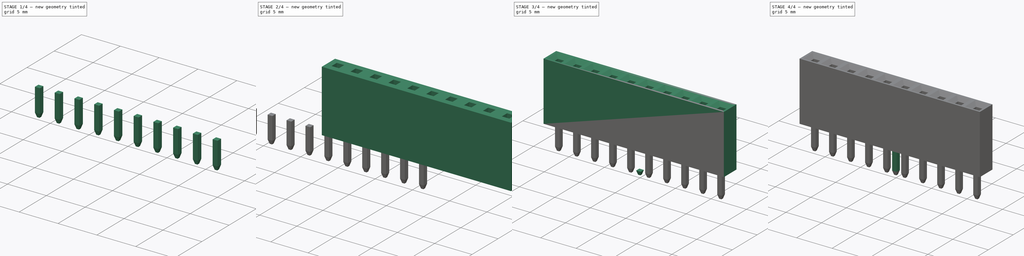
[diagram: build sequence overview — one tinted view per stage of 4, left to right]
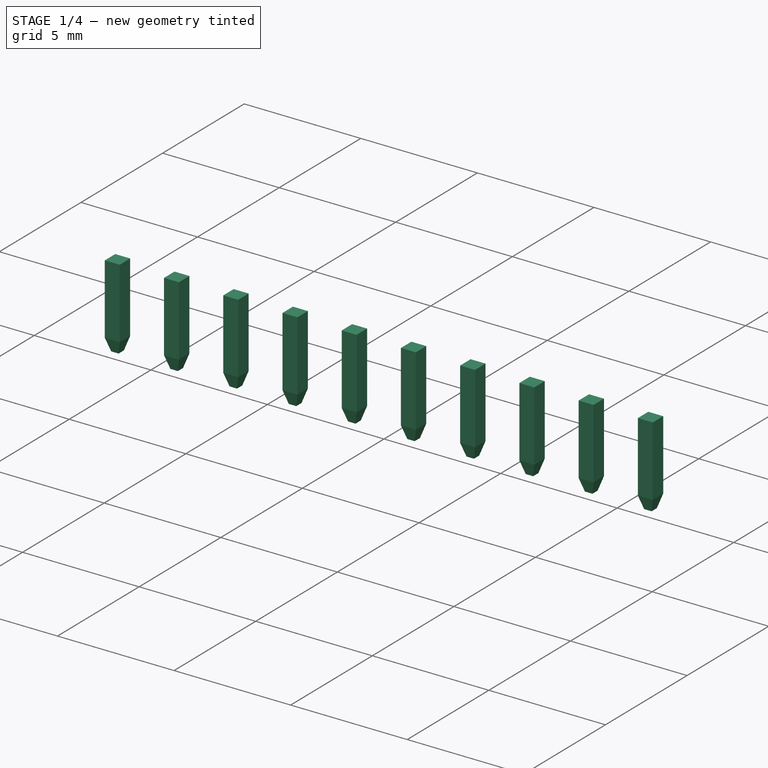
[diagram: stage 1 of 4 — iso view after this stage's code; geometry added in this stage tinted green]
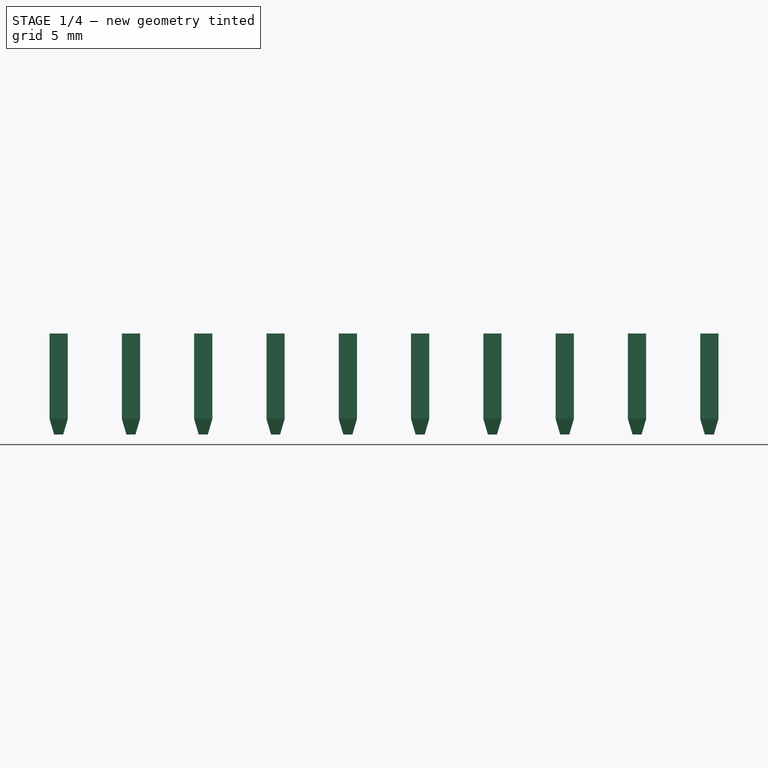
[diagram: stage 1 of 4 — front view after this stage's code; geometry added in this stage tinted green]
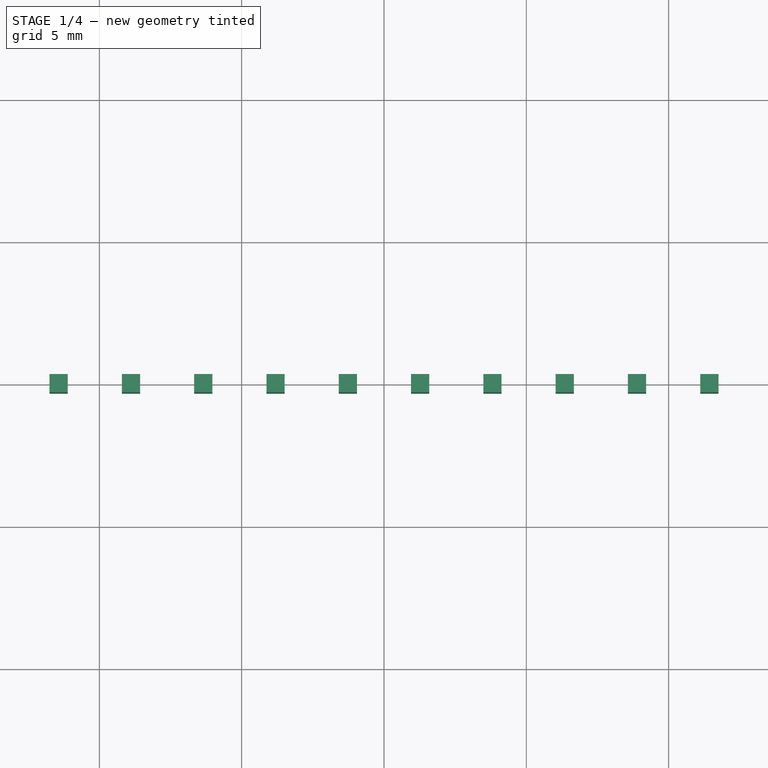
[diagram: stage 1 of 4 — top view after this stage's code; geometry added in this stage tinted green]
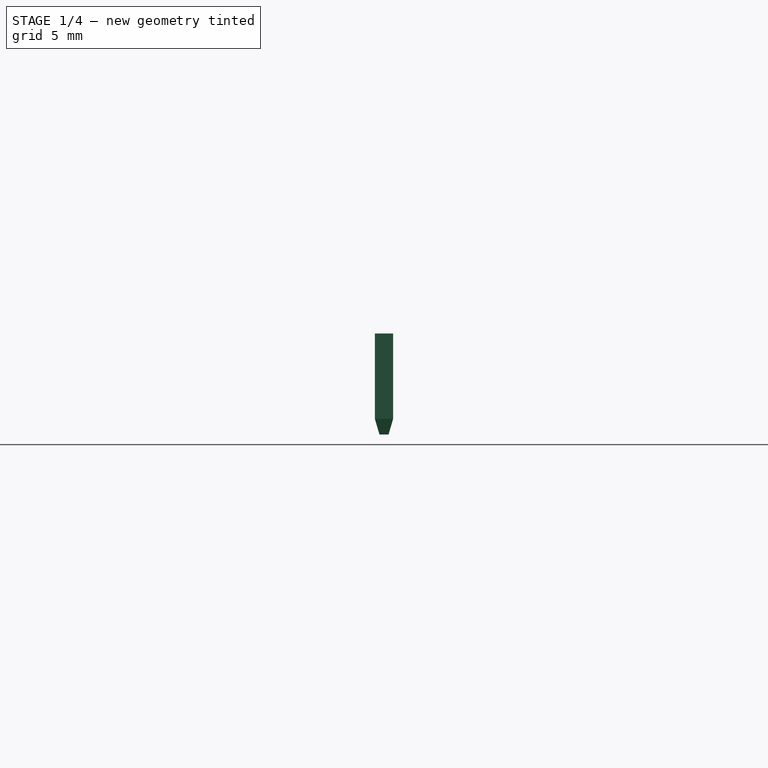
[diagram: stage 1 of 4 — right view after this stage's code; geometry added in this stage tinted green]
FCSTD DOCUMENT  (FreeCAD 0.16R6703 (Git))
Label: 1x10-female-pin-header
License: CC-BY 3.0
LicenseURL: http://creativecommons.org/licenses/by/3.0/
objects: Sketcher::SketchObject×5, Part::FeaturePython×3, PartDesign::Pad×2, PartDesign::Pocket×1, PartDesign::LinearPattern×1, Part::Loft×1, Part::MultiFuse×1, Part::Feature×1, Part::Chamfer×1, App::DocumentObjectGroup×1
note: 19 computed .brp shape members not serialized (recipe doc carries the construction recipe); baked Part::Feature solids carry a one-line shape summary decoded from their .brp

FEATURE [Part::Feature] Fusion001  label="pin-bottom-1"
  shape: bbox 0.64 x 0.64 x 3.546 mm, 10 faces (baked)
FEATURE [Part::FeaturePython] Array  label="Array-pins"  # Draft array (typed FeaturePython)
  Angle = 360
  ArrayType = 0
  Axis = (0,0,1)
  Base = -> Fusion001
  Center = (0,0,0)
  IntervalX = (2.54,0,0)
  IntervalY = (0,1,0)
  IntervalZ = (0,0,1)
  NumberPolar = 1
  NumberX = 10
  NumberY = 1
  NumberZ = 1
FEATURE [Part::FeaturePython] Clone001  label="pins"  # Draft clone (typed FeaturePython)
  Objects = -> [Array]
  Placement = pos=(-11.43,0,0) rot=(0,0,1;0rad)
  Scale = (1,1,1)
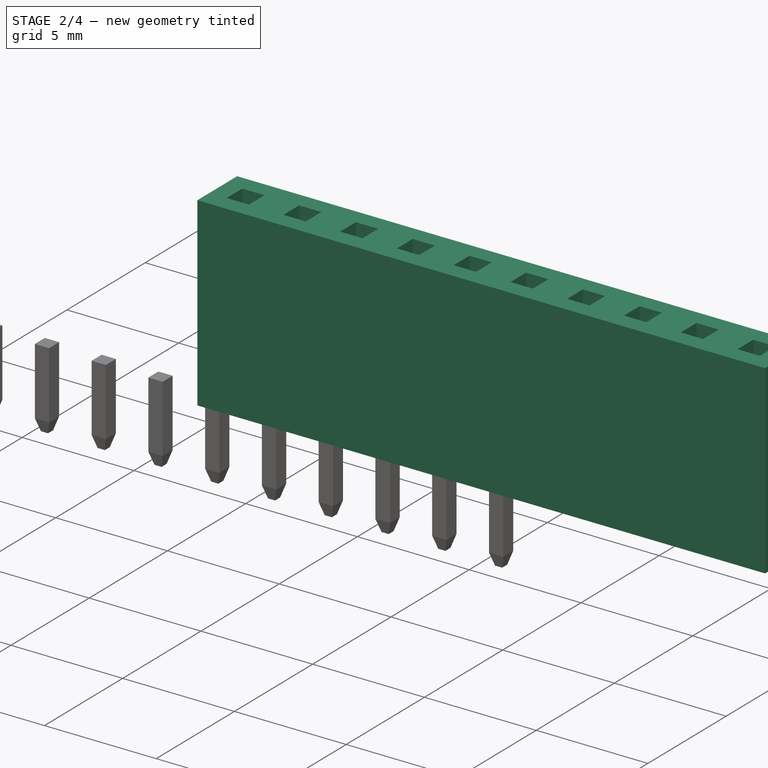
[diagram: stage 2 of 4 — iso view after this stage's code; geometry added in this stage tinted green]
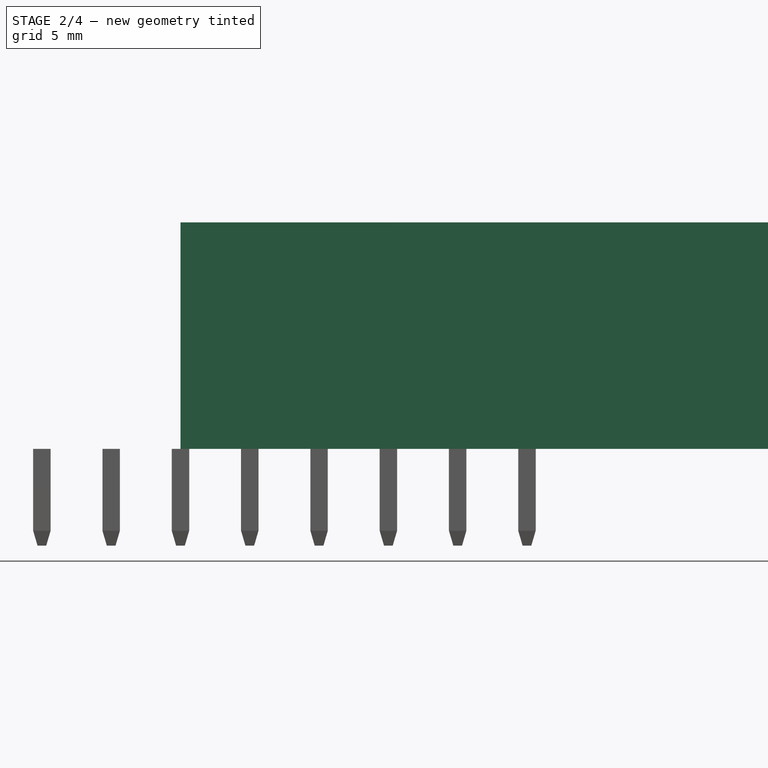
[diagram: stage 2 of 4 — front view after this stage's code; geometry added in this stage tinted green]
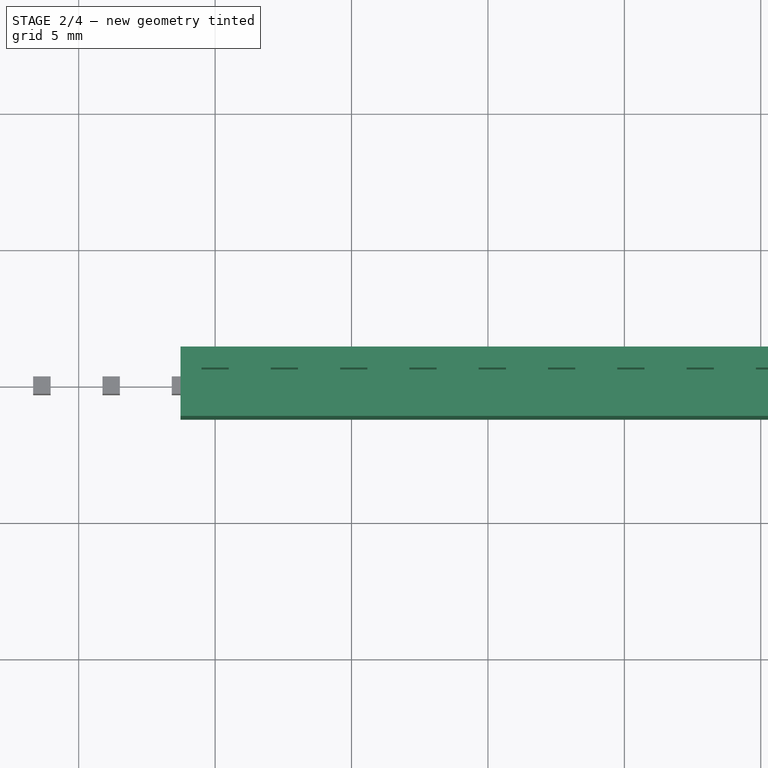
[diagram: stage 2 of 4 — top view after this stage's code; geometry added in this stage tinted green]
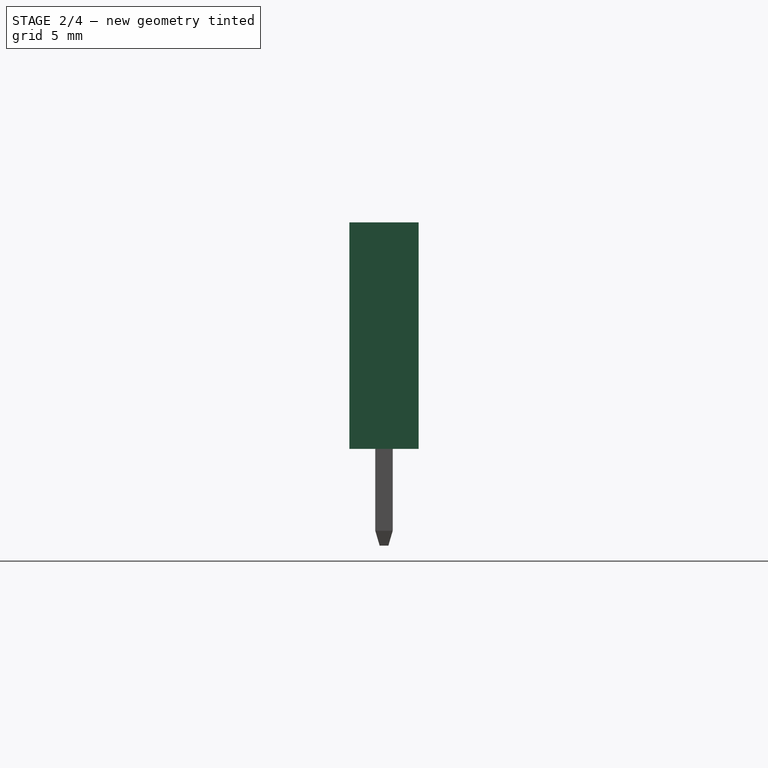
[diagram: stage 2 of 4 — right view after this stage's code; geometry added in this stage tinted green]
FEATURE [Sketcher::SketchObject] Sketch  label="main-body-sketch"
  sketch-geometry (4):
    g0: LineSegment StartX=-1.27 StartY=1.27 StartZ=0 EndX=24.13 EndY=1.27 EndZ=0
    g1: LineSegment StartX=24.13 StartY=1.27 StartZ=0 EndX=24.13 EndY=-1.27 EndZ=0
    g2: LineSegment StartX=24.13 StartY=-1.27 StartZ=0 EndX=-1.27 EndY=-1.27 EndZ=0
    g3: LineSegment StartX=-1.27 StartY=-1.27 StartZ=0 EndX=-1.27 EndY=1.27 EndZ=0
  constraints (12):
    c: Coincident(g0,g1)
    c: Coincident(g1,g2)
    c: Coincident(g2,g3)
    c: Coincident(g3,g0)
    c: Horizontal(g0)
    c: Horizontal(g2)
    c: Vertical(g1)
    c: Vertical(g3)
    c: Symmetric(g0,g2,g-1)
    c: DistanceX(g0) = 25.4
    c: DistanceY(g1) = -2.54
    c: DistanceX(g-1,g0) = -1.27
FEATURE [PartDesign::Pad] Pad  label="main-body"
  Length = 8.3
  Length2 = 100
  Sketch = -> Sketch
  Type = 0
FEATURE [Sketcher::SketchObject] Sketch001  label="female-pin-1-sketch"
  Placement = pos=(0,0,8.3) rot=(0,0,1;0rad)
  Support = -> Pad [Face6]
  sketch-geometry (4):
    g0: LineSegment StartX=-0.5 StartY=0.5 StartZ=0 EndX=0.5 EndY=0.5 EndZ=0
    g1: LineSegment StartX=0.5 StartY=0.5 StartZ=0 EndX=0.5 EndY=-0.5 EndZ=0
    g2: LineSegment StartX=0.5 StartY=-0.5 StartZ=0 EndX=-0.5 EndY=-0.5 EndZ=0
    g3: LineSegment StartX=-0.5 StartY=-0.5 StartZ=0 EndX=-0.5 EndY=0.5 EndZ=0
  constraints (11):
    c: Coincident(g0,g1)
    c: Coincident(g1,g2)
    c: Coincident(g2,g3)
    c: Coincident(g3,g0)
    c: Horizontal(g0)
    c: Horizontal(g2)
    c: Vertical(g1)
    c: Vertical(g3)
    c: Symmetric(g0,g1,g-1)
    c: Equal(g0,g3)
    c: DistanceX(g0) = 1
FEATURE [PartDesign::Pocket] Pocket  label="female-pin-1"
  Length = 4
  Sketch = -> Sketch001
  Type = 0
FEATURE [PartDesign::LinearPattern] LinearPattern  label="female-pins-array-raw"
  Direction = -> Sketch001 [H_Axis]
  Length = 22.86
  Occurrences = 10
  Originals = -> [Pocket]
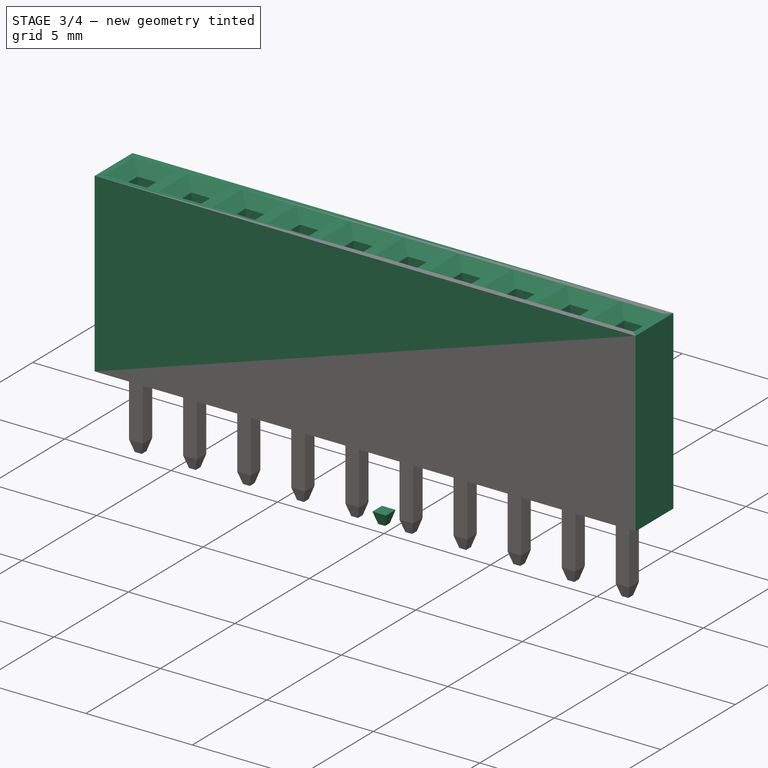
[diagram: stage 3 of 4 — iso view after this stage's code; geometry added in this stage tinted green]
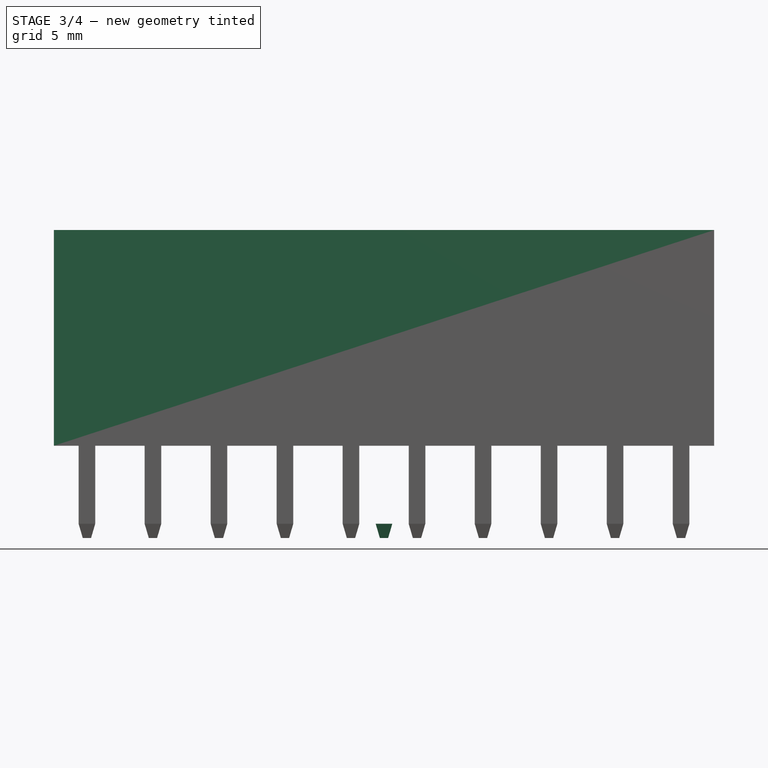
[diagram: stage 3 of 4 — front view after this stage's code; geometry added in this stage tinted green]
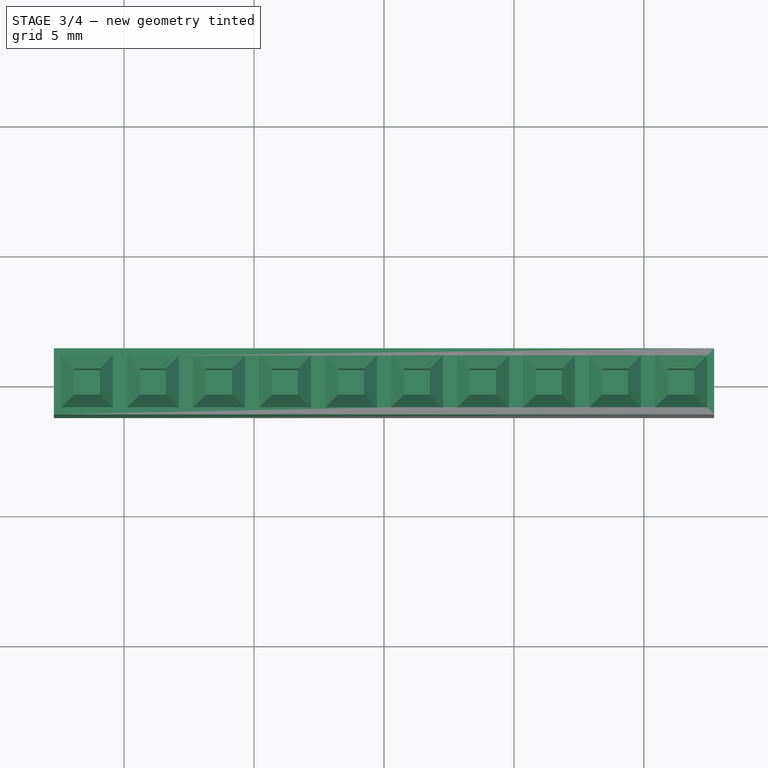
[diagram: stage 3 of 4 — top view after this stage's code; geometry added in this stage tinted green]
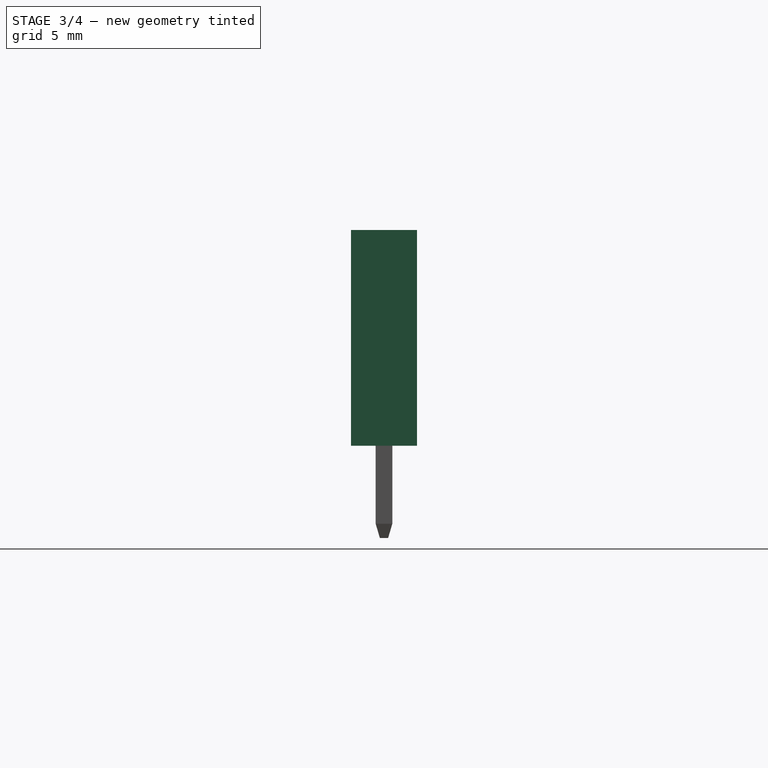
[diagram: stage 3 of 4 — right view after this stage's code; geometry added in this stage tinted green]
FEATURE [Sketcher::SketchObject] Sketch003  label="pin-end-top-base-sketch"
  Placement = pos=(0,0,0.546) rot=(0,0,1;0rad)
  sketch-geometry (4):
    g0: LineSegment StartX=-0.16 StartY=0.16 StartZ=0 EndX=0.16 EndY=0.16 EndZ=0
    g1: LineSegment StartX=0.16 StartY=0.16 StartZ=0 EndX=0.16 EndY=-0.16 EndZ=0
    g2: LineSegment StartX=0.16 StartY=-0.16 StartZ=0 EndX=-0.16 EndY=-0.16 EndZ=0
    g3: LineSegment StartX=-0.16 StartY=-0.16 StartZ=0 EndX=-0.16 EndY=0.16 EndZ=0
  constraints (11):
    c: Coincident(g0,g1)
    c: Coincident(g1,g2)
    c: Coincident(g2,g3)
    c: Coincident(g3,g0)
    c: Horizontal(g0)
    c: Horizontal(g2)
    c: Vertical(g1)
    c: Vertical(g3)
    c: Symmetric(g0,g1,g-1)
    c: Equal(g0,g3)
    c: DistanceX(g0) = 0.32
FEATURE [Sketcher::SketchObject] Sketch004  label="pin-end-bottom-base-sketch"
  sketch-geometry (4):
    g0: LineSegment StartX=-0.32 StartY=0.32 StartZ=0 EndX=0.32 EndY=0.32 EndZ=0
    g1: LineSegment StartX=0.32 StartY=0.32 StartZ=0 EndX=0.32 EndY=-0.32 EndZ=0
    g2: LineSegment StartX=0.32 StartY=-0.32 StartZ=0 EndX=-0.32 EndY=-0.32 EndZ=0
    g3: LineSegment StartX=-0.32 StartY=-0.32 StartZ=0 EndX=-0.32 EndY=0.32 EndZ=0
  constraints (11):
    c: Coincident(g0,g1)
    c: Coincident(g1,g2)
    c: Coincident(g2,g3)
    c: Coincident(g3,g0)
    c: Horizontal(g0)
    c: Horizontal(g2)
    c: Vertical(g1)
    c: Vertical(g3)
    c: Symmetric(g0,g1,g-1)
    c: Equal(g0,g3)
    c: DistanceX(g0) = 0.64
FEATURE [Part::Loft] Loft  label="pin-end"
  Closed = false
  Placement = pos=(0,0,-3) rot=(0,1,0;3.14159rad)
  Ruled = false
  Sections = -> [Sketch004,Sketch003]
  Solid = true
FEATURE [Part::Chamfer] Chamfer  label="socket-body"
  Base = -> LinearPattern
  Edges = 40 edges r=0.5: [Edge13,Edge14,Edge15,Edge16,Edge17,Edge18,Edge19,Edge20,Edge21,Edge22,Edge23,Edge24,Edge25,Edge26,Edge27,Edge28,Edge29,Edge30,Edge31,Edge32,Edge33,Edge34,Edge35,Edge36,Edge37,Edge38,Edge39,Edge40,Edge41,Edge42,Edge43,Edge44,Edge45,Edge46,Edge47,Edge48,Edge49,Edge50,Edge51,Edge52]
FEATURE [App::DocumentObjectGroup] Group  label="header-srcs"
  Group = -> [Pad,Pocket,Fusion,LinearPattern,Chamfer,Array]
FEATURE [Part::FeaturePython] Clone  label="body"  # Draft clone (typed FeaturePython)
  Objects = -> [Chamfer]
  Placement = pos=(-11.43,0,0) rot=(0,0,1;0rad)
  Scale = (1,1,1)
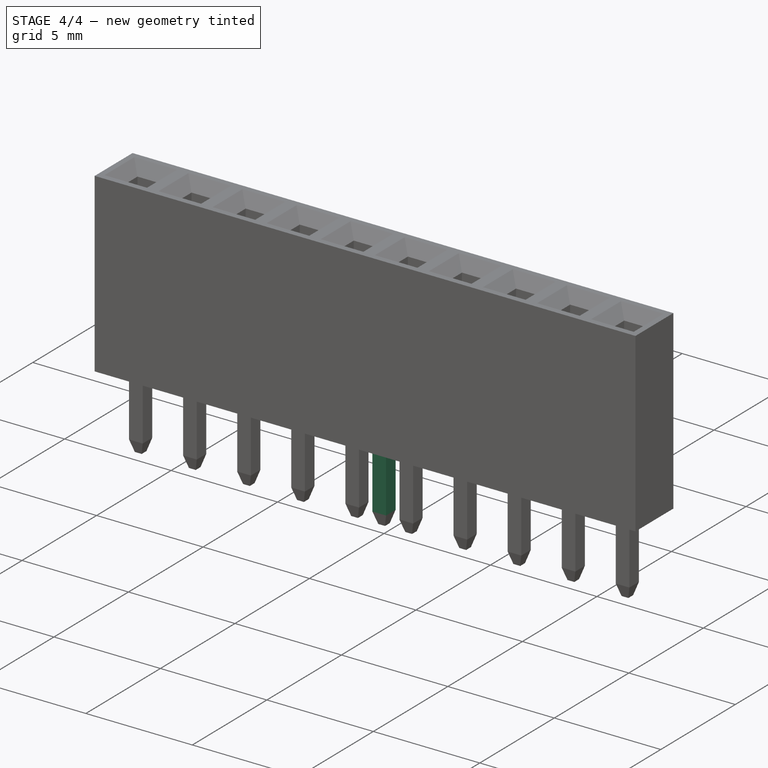
[diagram: stage 4 of 4 — iso view after this stage's code; geometry added in this stage tinted green]
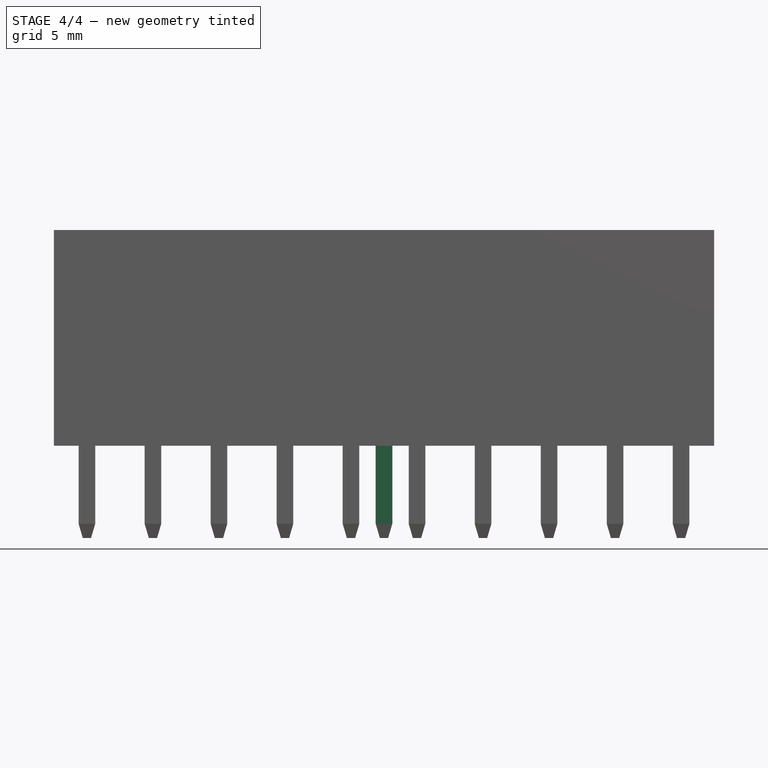
[diagram: stage 4 of 4 — front view after this stage's code; geometry added in this stage tinted green]
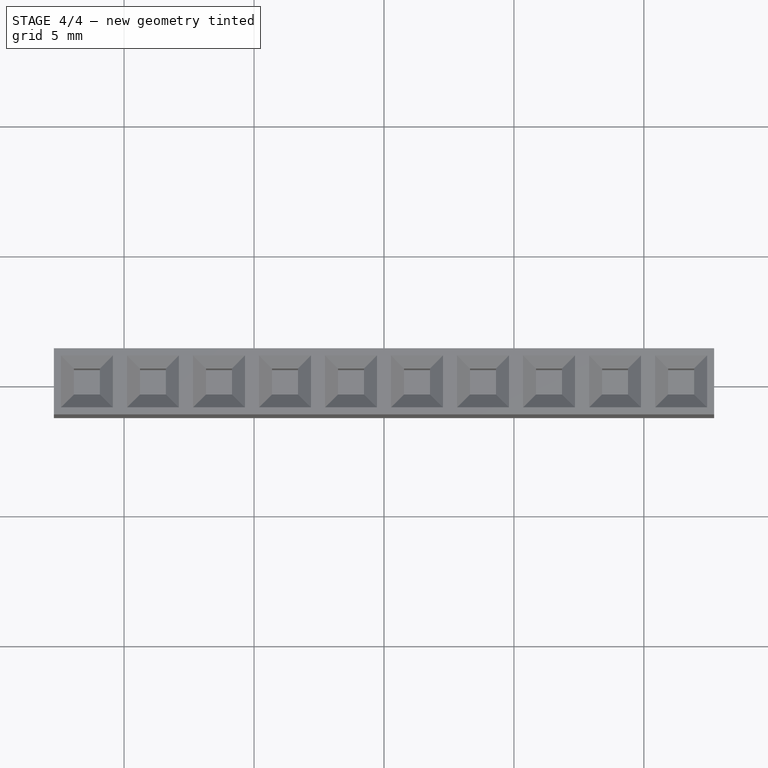
[diagram: stage 4 of 4 — top view after this stage's code; geometry added in this stage tinted green]
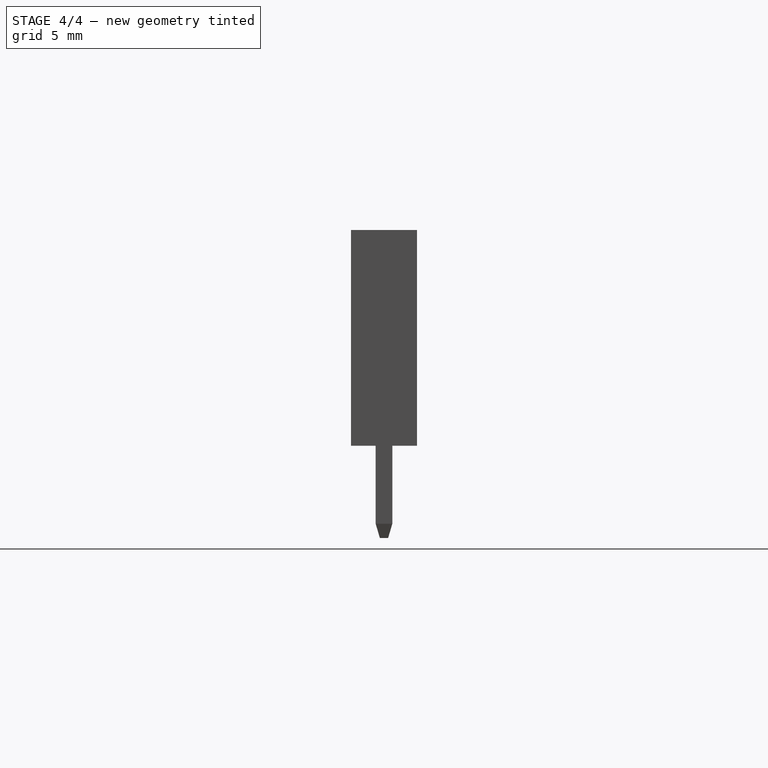
[diagram: stage 4 of 4 — right view after this stage's code; geometry added in this stage tinted green]
FEATURE [Sketcher::SketchObject] Sketch002  label="pin-base-sketch"
  Placement = pos=(0,0,-3) rot=(0,0,1;0rad)
  sketch-geometry (4):
    g0: LineSegment StartX=-0.32 StartY=0.32 StartZ=0 EndX=0.32 EndY=0.32 EndZ=0
    g1: LineSegment StartX=0.32 StartY=0.32 StartZ=0 EndX=0.32 EndY=-0.32 EndZ=0
    g2: LineSegment StartX=0.32 StartY=-0.32 StartZ=0 EndX=-0.32 EndY=-0.32 EndZ=0
    g3: LineSegment StartX=-0.32 StartY=-0.32 StartZ=0 EndX=-0.32 EndY=0.32 EndZ=0
  constraints (11):
    c: Coincident(g0,g1)
    c: Coincident(g1,g2)
    c: Coincident(g2,g3)
    c: Coincident(g3,g0)
    c: Horizontal(g0)
    c: Horizontal(g2)
    c: Vertical(g1)
    c: Vertical(g3)
    c: Symmetric(g0,g1,g-1)
    c: Equal(g0,g3)
    c: DistanceX(g0) = 0.64
FEATURE [PartDesign::Pad] Pad001  label="pin-base"
  Length = 3
  Length2 = 100
  Placement = pos=(0,0,-3) rot=(0,0,1;0rad)
  Sketch = -> Sketch002
  Type = 0
FEATURE [Part::MultiFuse] Fusion  label="pin-bottom"
  Shapes = -> [Pad001,Loft]
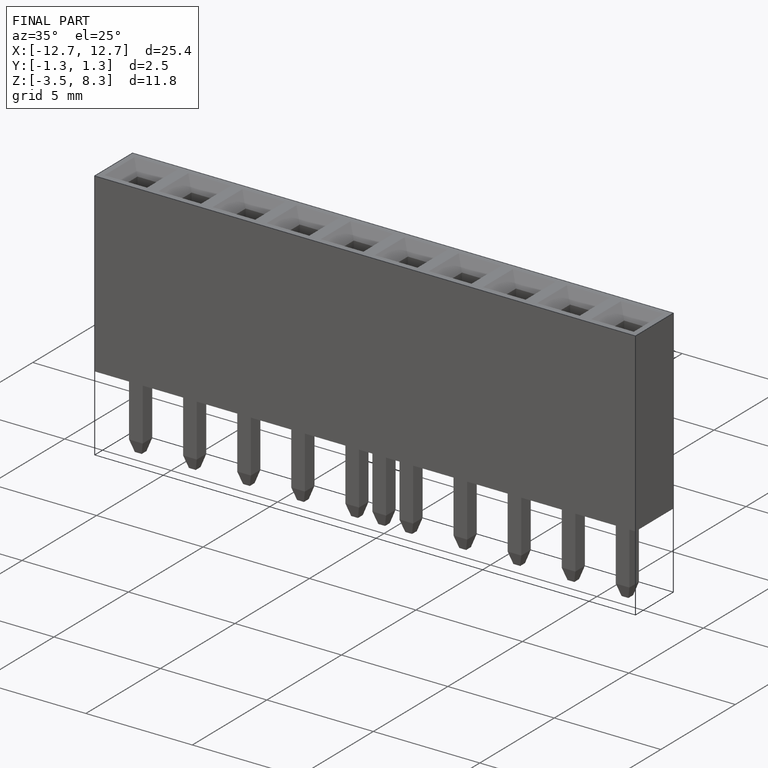
[diagram: finished part — iso view with bounding-box wireframe]
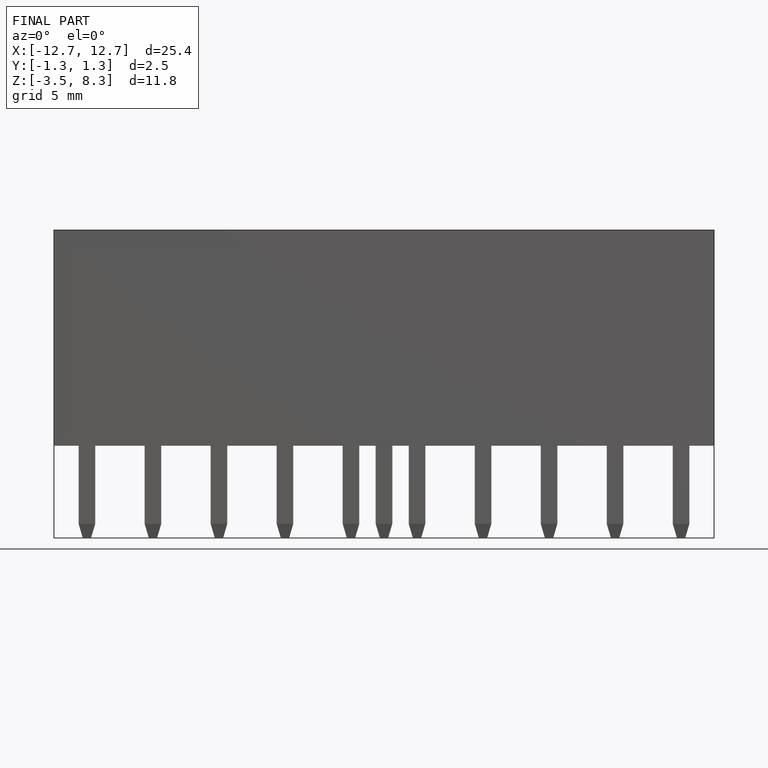
[diagram: finished part — front view with bounding-box wireframe]
